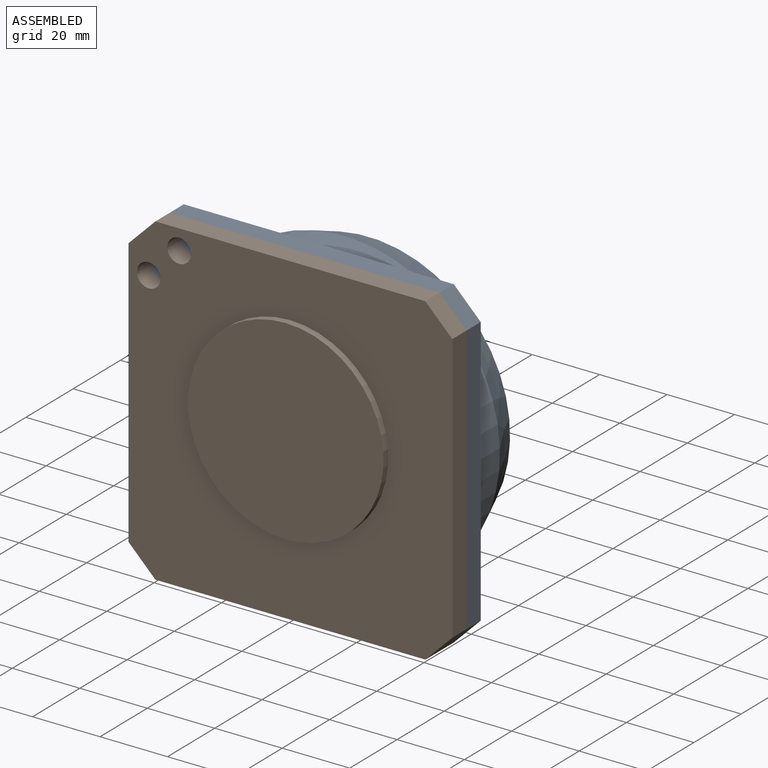
[diagram: assembled view]
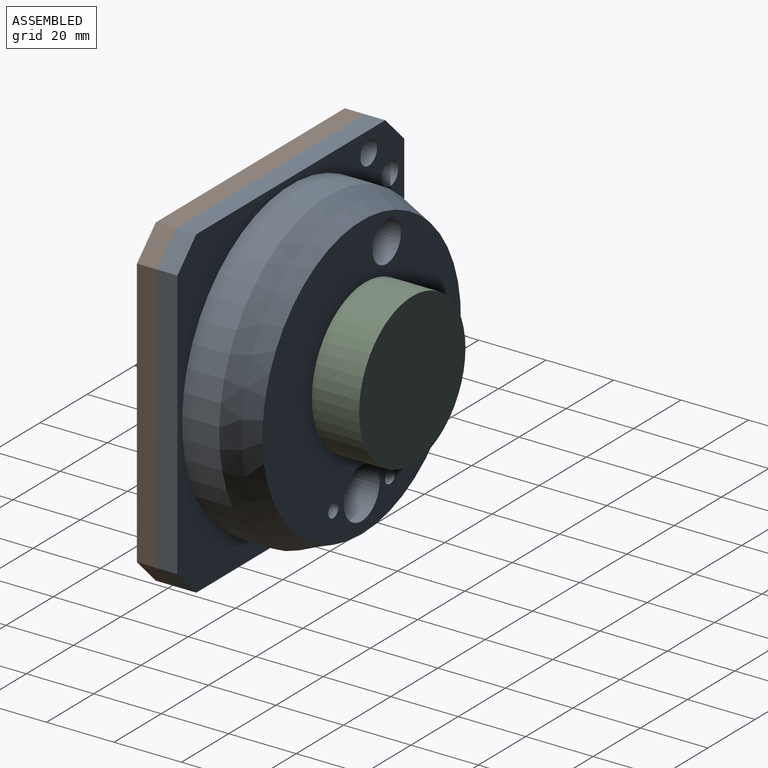
[diagram: assembled view, second angle]
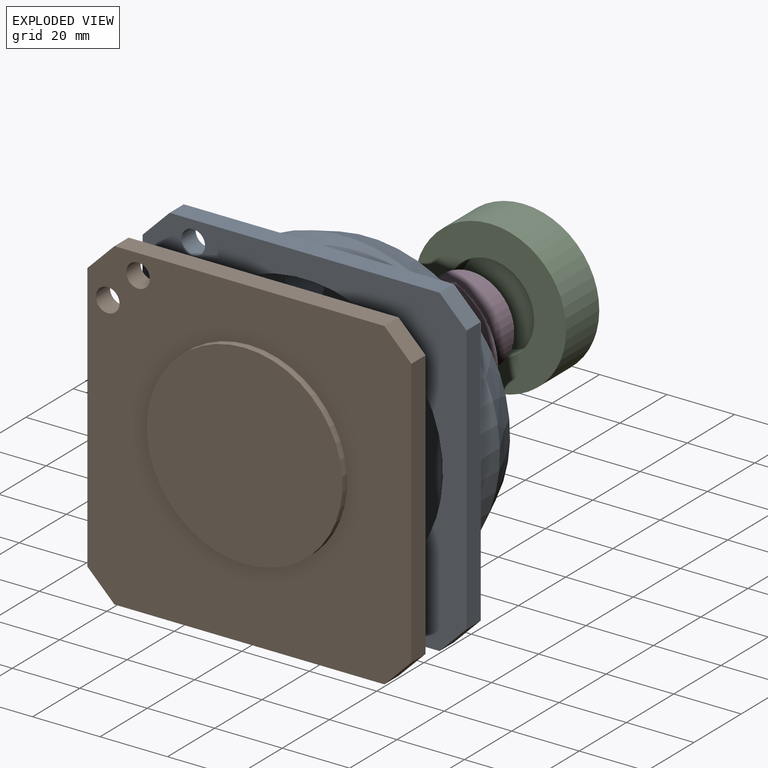
[diagram: exploded view]
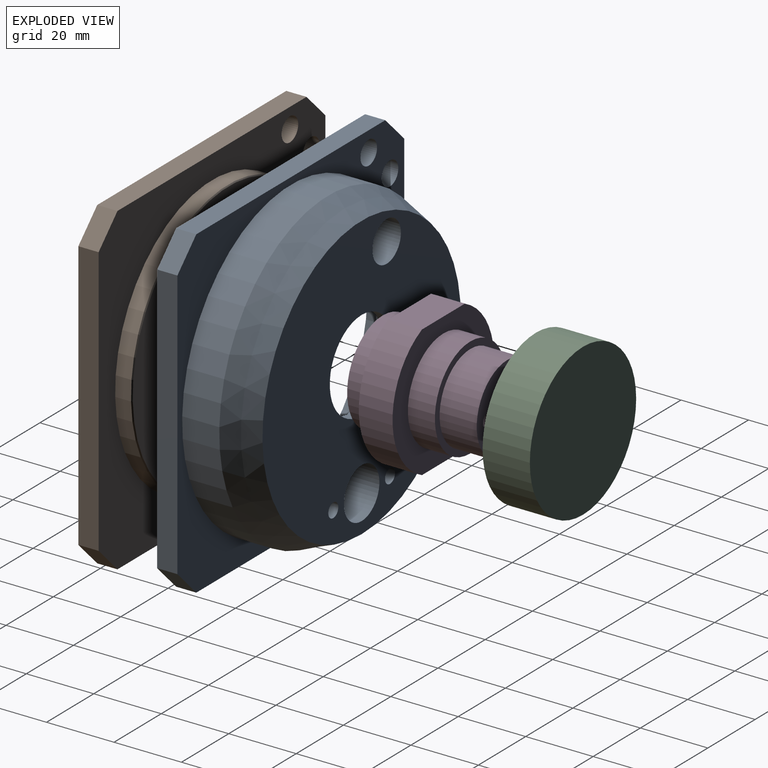
[diagram: exploded view, second angle]
ASSEMBLY  parts=4 mates=3
PART A: 24 faces, bbox 96x27x96 mm
  f0: plane 80x6mm, normal (0,0,1), area 480mm2, adj f4,f18,f22,f23
  f1: plane 80x6mm, normal (-1,0,0), area 480mm2, adj f4,f18,f21,f23
  f2: plane 80x6mm, normal (0,0,-1), area 480mm2, adj f4,f18,f20,f21
  f3: plane 80x6mm, normal (1,0,0), area 480mm2, adj f4,f18,f20,f22
  f4: plane 96x96mm, normal (0,-1,0), area 3730mm2, adj f0,f1,f2,f3,f7,f12,f13,f20
  f5: cylinder r=46mm len=92mm, axis (0,-1,0), area 3179.3mm2, adj f18,f19
  f6: plane 84x84mm, normal (0,1,0), area 4651.7mm2, adj f11,f14,f15,f16,f17,f19
  f7: cylinder r=41mm len=82mm, axis (0,-1,0), area 3864.2mm2, adj f4,f8
  f8: plane 82x82mm, normal (0,-1,0), area 3228.6mm2, adj f7,f9,f14,f15,f16,f17
  f9: cylinder r=23.5mm len=47mm, axis (0,-1,0), area 1328.9mm2, adj f8,f10
  f10: plane 47x47mm, normal (0,-1,0), area 1162.4mm2, adj f9,f11
  f11: cylinder r=13.5mm len=27mm, axis (0,-1,0), area 254.5mm2, adj f6,f10
  f12: cylinder r=3.5mm len=7mm, axis (0,1,0), area 131.9mm2, adj f4,f18
  f13: cylinder r=3.5mm len=7mm, axis (0,1,0), area 131.9mm2, adj f4,f18
  f14: cylinder r=7.5mm len=15mm, axis (0,1,0), area 565.5mm2, adj f6,f8
  f15: cylinder r=2.1mm len=12mm, axis (0,1,0), area 158.3mm2, adj f6,f8
  f16: cylinder r=2.1mm len=12mm, axis (0,1,0), area 158.3mm2, adj f6,f8
  f17: cylinder r=6mm len=12mm, axis (0,1,0), area 452.4mm2, adj f6,f8
  f18: plane 96x96mm, normal (0,1,0), area 2363.4mm2, adj f0,f1,f2,f3,f5,f12,f13,f20
  f19: cone r=46mm half-angle=21.8deg, axis (0,-1,0), area 2977.6mm2, adj f5,f6
  f20: plane 8x8mm, normal (0.71,0,-0.71), area 67.9mm2, adj f2,f3,f4,f18
  f21: plane 8x8mm, normal (-0.71,0,-0.71), area 67.9mm2, adj f1,f2,f4,f18
  f22: plane 8x8mm, normal (0.71,0,0.71), area 67.9mm2, adj f0,f3,f4,f18
  f23: plane 8x8mm, normal (-0.71,0,0.71), area 67.9mm2, adj f0,f1,f4,f18
PART B: 19 faces, bbox 96x13x96 mm
  f0: plane 80x6mm, normal (0,0,1), area 480mm2, adj f4,f5,f16,f17
  f1: plane 80x6mm, normal (-1,0,0), area 480mm2, adj f4,f5,f15,f17
  f2: plane 80x6mm, normal (0,0,-1), area 480mm2, adj f4,f5,f14,f15
  f3: plane 80x6mm, normal (1,0,0), area 480mm2, adj f4,f5,f14,f16
  f4: plane 96x96mm, normal (0,-1,0), area 6369mm2, adj f0,f1,f2,f3,f10,f12,f13,f14
  f5: plane 96x96mm, normal (0,1,0), area 3730mm2, adj f0,f1,f2,f3,f6,f12,f13,f14
  f6: cylinder r=41mm len=82mm, axis (0,-1,0), area 1210.8mm2, adj f5,f18
  f7: plane 81.4x81.4mm, normal (0,1,0), area 3469.1mm2, adj f8,f18
  f8: cylinder r=23.5mm len=47mm, axis (0,1,0), area 1328.9mm2, adj f7,f9
  f9: plane 47x47mm, normal (0,1,0), area 1734.9mm2, adj f8
  f10: cylinder r=29mm len=58mm, axis (0,1,0), area 364.4mm2, adj f4,f11
  f11: plane 58x58mm, normal (0,-1,0), area 2642.1mm2, adj f10
  f12: cylinder r=3.5mm len=7mm, axis (0,1,0), area 131.9mm2, adj f4,f5
  f13: cylinder r=3.5mm len=7mm, axis (0,1,0), area 131.9mm2, adj f4,f5
  f14: plane 8x8mm, normal (0.71,0,-0.71), area 67.9mm2, adj f2,f3,f4,f5
  f15: plane 8x8mm, normal (-0.71,0,-0.71), area 67.9mm2, adj f1,f2,f4,f5
  f16: plane 8x8mm, normal (0.71,0,0.71), area 67.9mm2, adj f0,f3,f4,f5
  f17: plane 8x8mm, normal (-0.71,0,0.71), area 67.9mm2, adj f0,f1,f4,f5
  f18: cone r=41mm half-angle=45deg, axis (0,-1,0), area 108.9mm2, adj f6,f7
PART C: 5 faces, bbox 45x14x45 mm
  f0: cylinder r=22.5mm len=45mm, axis (0,1,0), area 1979.2mm2, adj f1,f2
  f1: plane 45x45mm, normal (0,-1,0), area 1059.5mm2, adj f0,f3
  f2: plane 45x45mm, normal (0,1,0), area 1590.4mm2, adj f0
  f3: cylinder r=13mm len=26mm, axis (0,-1,0), area 490.1mm2, adj f1,f4
  f4: plane 26x26mm, normal (0,-1,0), area 530.9mm2, adj f3
PART D: 16 faces, bbox 43x37x39 mm
  f0: plane 43x39mm, normal (0,1,0), area 696.6mm2, adj f1,f4,f5,f10,f11
  f1: cylinder r=21.5mm len=39mm, axis (0,-1,0), area 488.5mm2, adj f0,f2,f10,f11
  f2: plane 43x39mm, normal (0,-1,0), area 696.6mm2, adj f1,f5,f6,f10,f11
  f3: plane 30x30mm, normal (0,1,0), area 706.9mm2, adj f4
  f4: cylinder r=15mm len=30mm, axis (0,-1,0), area 754mm2, adj f0,f3
  f5: cylinder r=21.5mm len=39mm, axis (0,-1,0), area 488.5mm2, adj f0,f2,f10,f11
  f6: cylinder r=15mm len=30mm, axis (0,-1,0), area 754mm2, adj f2,f7
  f7: plane 30x30mm, normal (0,-1,0), area 175.9mm2, adj f6,f8
  f8: cylinder r=13mm len=26mm, axis (0,-1,0), area 898.5mm2, adj f7,f9
  f9: plane 26x26mm, normal (0,-1,0), area 503.2mm2, adj f8,f13,f15
  f10: plane 18.11x10mm, normal (0,0,-1), area 181.1mm2, adj f0,f1,f2,f5
  f11: plane 18.11x10mm, normal (0,0,1), area 181.1mm2, adj f0,f1,f2,f5
  f12: cone r=0mm half-angle=59deg, axis (0,-1,0), area 16.2mm2, adj f13
  f13: cylinder r=2.1mm len=14.4mm, axis (0,-1,0), area 190mm2, adj f9,f12
  f14: cone r=0mm half-angle=59deg, axis (0,-1,0), area 16.2mm2, adj f15
  f15: cylinder r=2.1mm len=14.4mm, axis (0,-1,0), area 190mm2, adj f9,f14
PLACE A t=(21.97,13.77,9.13)mm
PLACE B t=(21.97,53.77,9.13)mm
PLACE C t=(21.97,95.77,109.13)mm
PLACE D rot(axis=(1,0,0),180deg) t=(21.97,-99.23,12.38)mm
MATE fastened B.f6 <-> A.f7  axis (0,1,0) through (21.97,3.77,9.13)mm
MATE fastened C.f3 <-> D.f1  axis (0,-1,0) through (21.97,37.77,12.38)mm
MATE fastened D.f1 <-> A.f9  axis (0,1,0) through (21.97,18.77,12.38)mm
